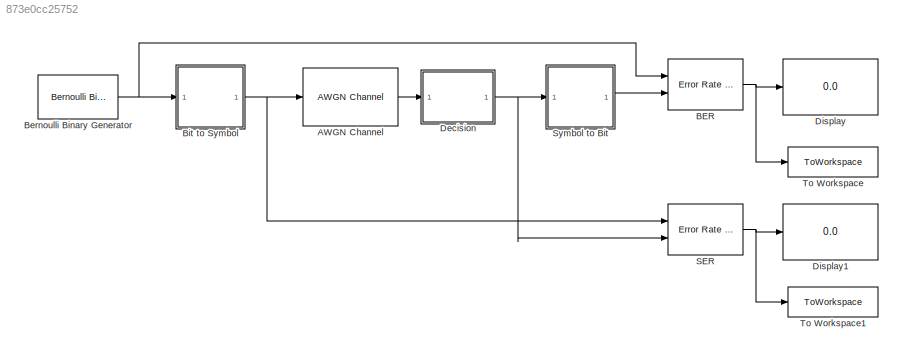
MODEL slx_873e0cc25752
KIND model
CONFIG AbsTol = auto
CONFIG EnableMultiTasking = off
CONFIG FixedStep = auto
CONFIG MaxStep = auto
CONFIG MinStep = auto
CONFIG RelTol = 1e-3
CONFIG SampleTimeConstraint = Unconstrained
CONFIG SolverName = VariableStepAuto
CONFIG StartTime = 0.0
CONFIG StopTime = 100000
BLOCK [Reference] AWGN Channel  REF=commchan3/AWGN
Channel
  Ports = [1, 1]
  SourceBlock = commchan3/AWGN\nChannel
  SourceProductBaseCode = CM
  SourceType = AWGN Channel
  UserDataPersistent = on
BLOCK [Reference] BER  REF=commsink2/Error Rate
Calculation
  Ports = [2, 1]
  SourceBlock = commsink2/Error Rate\nCalculation
  SourceProductBaseCode = CM
  SourceType = Error Rate Calculation
BLOCK [Reference] Bernoulli Binary Generator  REF=commrandsrc3/Bernoulli Binary
Generator
  Ports = [0, 1]
  SourceBlock = commrandsrc3/Bernoulli Binary\nGenerator
  SourceProductBaseCode = CM
  SourceType = Bernoulli Binary Generator
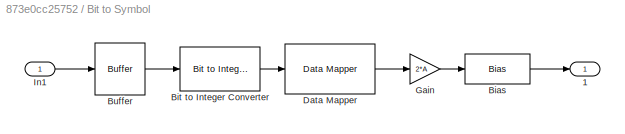
BLOCK [SubSystem] Bit to Symbol
  Ports = [1, 1]
  RequestExecContextInheritance = off
BLOCK [Outport] Bit to Symbol/1
BLOCK [Bias] Bit to Symbol/Bias
  Bias = -(2^k-1)*A
  SaturateOnIntegerOverflow = off
BLOCK [Reference] Bit to Symbol/Bit to Integer Converter  REF=simulink/Logic and Bit
Operations/Bit to Integer
Converter
  Ports = [1, 1]
  SourceBlock = simulink/Logic and Bit\nOperations/Bit to Integer\nConverter
  SourceProductBaseCode = SL
  SourceType = Bit to Integer Converter
BLOCK [Buffer] Bit to Symbol/Buffer
  N = k
  OutputFrames = off
BLOCK [Reference] Bit to Symbol/Data Mapper  REF=commutil2/Data Mapper
  Ports = [1, 1]
  SourceBlock = commutil2/Data Mapper
  SourceProductBaseCode = CM
  SourceType = Data Mapper
BLOCK [Gain] Bit to Symbol/Gain
  Gain = 2*A
BLOCK [Inport] Bit to Symbol/In1
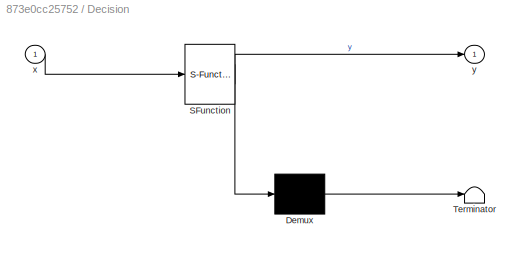
BLOCK [SubSystem] Decision
  ErrorFcn = Stateflow.Translate.translate
  PermitHierarchicalResolution = ExplicitOnly
  Ports = [1, 1]
  RequestExecContextInheritance = off
  SFBlockType = MATLAB Function
  TreatAsAtomicUnit = on
BLOCK [Demux] Decision/ Demux 
  Outputs = 1
  Ports = [1, 1]
BLOCK [S-Function] Decision/ SFunction 
  EnableBusSupport = on
  FunctionName = sf_sfun
  Parameters = A,k
  PortCounts = [1 2]
  Ports = [1, 2]
  SFcnIsStateOwnerBlock = off
  SFunctionDeploymentMode = off
  Tag = Stateflow S-Function 2
BLOCK [Terminator] Decision/ Terminator 
BLOCK [Inport] Decision/x
BLOCK [Outport] Decision/y
BLOCK [Display] Display
  Decimation = 1
  Ports = [1]
BLOCK [Display] Display1
  Decimation = 1
  Ports = [1]
BLOCK [Reference] SER  REF=commsink2/Error Rate
Calculation
  Ports = [2, 1]
  SourceBlock = commsink2/Error Rate\nCalculation
  SourceProductBaseCode = CM
  SourceType = Error Rate Calculation
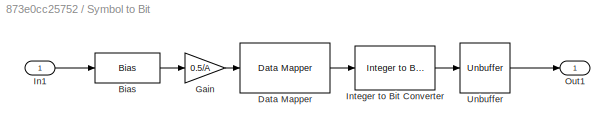
BLOCK [SubSystem] Symbol to Bit
  Ports = [1, 1]
  RequestExecContextInheritance = off
BLOCK [Bias] Symbol to Bit/Bias
  Bias = (2^k-1)*A
  SaturateOnIntegerOverflow = off
BLOCK [Reference] Symbol to Bit/Data Mapper  REF=commutil2/Data Mapper
  Ports = [1, 1]
  SourceBlock = commutil2/Data Mapper
  SourceProductBaseCode = CM
  SourceType = Data Mapper
BLOCK [Gain] Symbol to Bit/Gain
  Gain = 0.5/A
BLOCK [Inport] Symbol to Bit/In1
BLOCK [Reference] Symbol to Bit/Integer to Bit Converter  REF=simulink/Logic and Bit
Operations/Integer to Bit
Converter
  Ports = [1, 1]
  SourceBlock = simulink/Logic and Bit\nOperations/Integer to Bit\nConverter
  SourceProductBaseCode = SL
  SourceType = Integer to Bit Converter
BLOCK [Outport] Symbol to Bit/Out1
BLOCK [Unbuffer] Symbol to Bit/Unbuffer
  Ports = [1, 1]
BLOCK [ToWorkspace] To Workspace
  FixptAsFi = on
  MaxDataPoints = 1
  Ports = [1]
  SampleTime = -1
  VariableName = ber
BLOCK [ToWorkspace] To Workspace1
  FixptAsFi = on
  MaxDataPoints = 1
  Ports = [1]
  SampleTime = -1
  VariableName = ser
LINE AWGN Channel:1 -> Decision:1
NET BER:1 -> Display:1, To Workspace:1
NET Bernoulli Binary Generator:1 -> BER:1, Bit to Symbol:1
LINE Bit to Symbol/Bias:1 -> Bit to Symbol/1:1
LINE Bit to Symbol/Bit to Integer Converter:1 -> Bit to Symbol/Data Mapper:1
LINE Bit to Symbol/Buffer:1 -> Bit to Symbol/Bit to Integer Converter:1
LINE Bit to Symbol/Data Mapper:1 -> Bit to Symbol/Gain:1
LINE Bit to Symbol/Gain:1 -> Bit to Symbol/Bias:1
LINE Bit to Symbol/In1:1 -> Bit to Symbol/Buffer:1
NET Bit to Symbol:1 -> AWGN Channel:1, SER:1
NET Decision:1 -> SER:2, Symbol to Bit:1
NET SER:1 -> Display1:1, To Workspace1:1
LINE Symbol to Bit/Bias:1 -> Symbol to Bit/Gain:1
LINE Symbol to Bit/Data Mapper:1 -> Symbol to Bit/Integer to Bit Converter:1
LINE Symbol to Bit/Gain:1 -> Symbol to Bit/Data Mapper:1
LINE Symbol to Bit/In1:1 -> Symbol to Bit/Bias:1
LINE Symbol to Bit/Integer to Bit Converter:1 -> Symbol to Bit/Unbuffer:1
LINE Symbol to Bit/Unbuffer:1 -> Symbol to Bit/Out1:1
LINE Symbol to Bit:1 -> BER:2
note: NET lines group one-source signal fan-out (src -> all destinations, sorted); 1:1 wires keep LINE
CHART Decision states=1 transitions=1
  STATE_LABEL 'eML_blk_kernel()'
  STATE_LABEL 'SCRIPT:\nfunction y = decision(x,A, k)\ny = round((x+A)/(2*A))*2*A-A;\nif (y < -(2^k-1)*A)\n    y = -(2^k-1)*A;\nelseif (y > (2^k-1)*A)\n    y = (2^k-1)*A;\nend'
CHART  states=0 transitions=0
